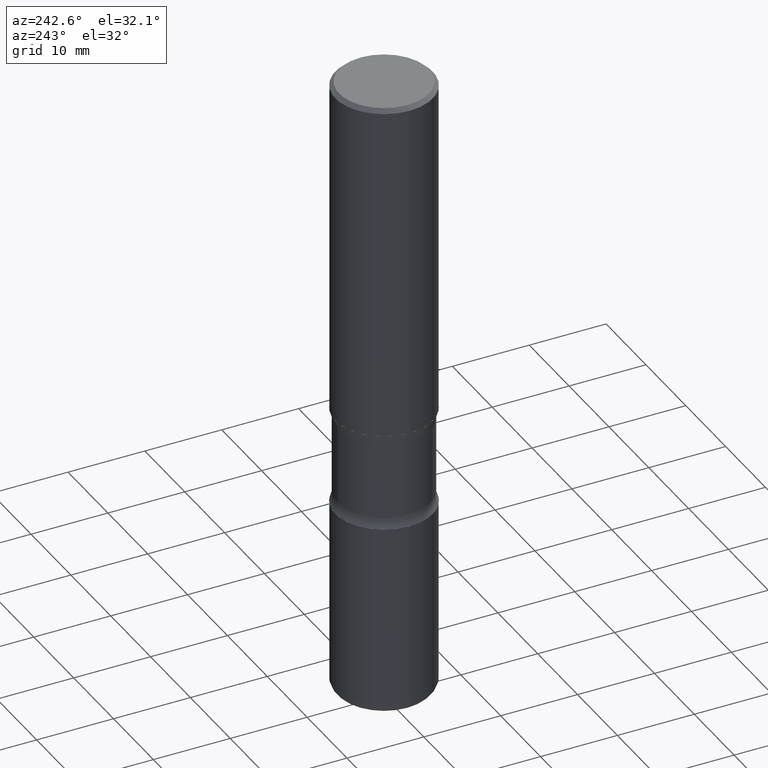
[diagram: clean part render]
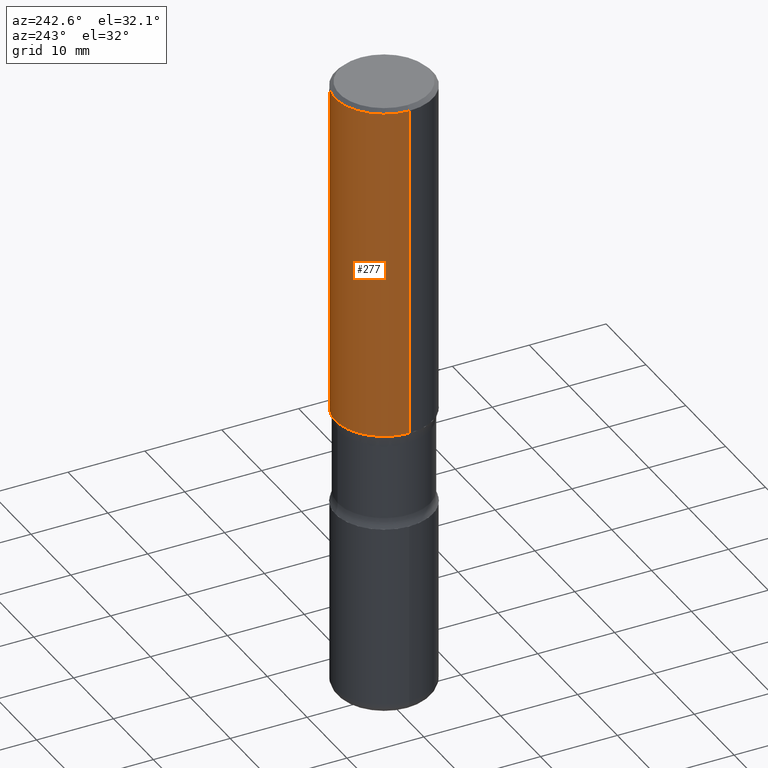
[diagram: same view with one face highlighted and labeled with its STEP entity id]
A machine part, auxiliary view. The second image highlights one B-rep face of the part: STEP entity #277.
In plain terms, the highlighted cylindrical surface (partial cylindrical patch) has radius 6.35 mm, axis along (-0, 0, 1).
Its self-contained STEP definition (entity closure, byte-faithful):
#4 = AXIS2_PLACEMENT_3D ( 'NONE', #109, #69, #482 ) ;
#24 = CARTESIAN_POINT ( 'NONE',  ( 0.2500000000000005551, -1.745740669421570622E-15, 1.219044193948986471E-29 ) ) ;
#39 = DIRECTION ( 'NONE',  ( 1.000000000000000000, -6.982962677686267499E-15, 0.000000000000000000 ) ) ;
#69 = DIRECTION ( 'NONE',  ( -2.445468806185136597E-29, 3.491481338843145583E-15, 1.000000000000000000 ) ) ;
#70 = ORIENTED_EDGE ( 'NONE', *, *, #138, .T. ) ;
#89 = DIRECTION ( 'NONE',  ( -2.445468806185136597E-29, 3.491481338843145583E-15, 1.000000000000000000 ) ) ;
#92 = CIRCLE ( 'NONE', #251, 0.2500000000000003886 ) ;
#93 = VERTEX_POINT ( 'NONE', #372 ) ;
#102 = VERTEX_POINT ( 'NONE', #414 ) ;
#109 = CARTESIAN_POINT ( 'NONE',  ( 4.279570410823991847E-29, -6.110092342975509404E-15, -1.750000000000001332 ) ) ;
#114 = EDGE_CURVE ( 'NONE', #192, #232, #178, .T. ) ;
#126 = FACE_OUTER_BOUND ( 'NONE', #396, .T. ) ;
#138 = EDGE_CURVE ( 'NONE', #232, #93, #195, .T. ) ;
#145 = DIRECTION ( 'NONE',  ( -2.445468806185136877E-29, 3.491481338843145188E-15, 1.000000000000000000 ) ) ;
#149 = CARTESIAN_POINT ( 'NONE',  ( -0.2500000000000005551, 1.776356839400254409E-15, -1.229733772563729108E-29 ) ) ;
#159 = DIRECTION ( 'NONE',  ( -2.445468806185136877E-29, 3.491481338843145188E-15, 1.000000000000000000 ) ) ;
#164 = DIRECTION ( 'NONE',  ( 1.000000000000000000, -6.982962677686266711E-15, 4.876176775795935232E-29 ) ) ;
#178 = CIRCLE ( 'NONE', #4, 0.2500000000000006661 ) ;
#192 = VERTEX_POINT ( 'NONE', #493 ) ;
#195 = LINE ( 'NONE', #149, #341 ) ;
#208 = EDGE_CURVE ( 'NONE', #192, #102, #227, .T. ) ;
#227 = LINE ( 'NONE', #24, #271 ) ;
#232 = VERTEX_POINT ( 'NONE', #495 ) ;
#251 = AXIS2_PLACEMENT_3D ( 'NONE', #511, #547, #39 ) ;
#256 = CARTESIAN_POINT ( 'NONE',  ( 0.000000000000000000, 0.000000000000000000, 0.000000000000000000 ) ) ;
#261 = AXIS2_PLACEMENT_3D ( 'NONE', #256, #89, #164 ) ;
#271 = VECTOR ( 'NONE', #159, 39.37007874015748143 ) ;
#277 = ADVANCED_FACE ( 'NONE', ( #126 ), #290, .T. ) ;
#290 = CYLINDRICAL_SURFACE ( 'NONE', #261, 0.2500000000000005551 ) ;
#341 = VECTOR ( 'NONE', #145, 39.37007874015748143 ) ;
#354 = ORIENTED_EDGE ( 'NONE', *, *, #437, .F. ) ;
#358 = ORIENTED_EDGE ( 'NONE', *, *, #114, .T. ) ;
#372 = CARTESIAN_POINT ( 'NONE',  ( -0.2500000000000003886, 1.675911042644706732E-15, -0.02000000000000000042 ) ) ;
#396 = EDGE_LOOP ( 'NONE', ( #358, #70, #354, #480 ) ) ;
#414 = CARTESIAN_POINT ( 'NONE',  ( 0.2500000000000003886, -1.784954126219748555E-15, -0.02000000000000000042 ) ) ;
#437 = EDGE_CURVE ( 'NONE', #102, #93, #92, .T. ) ;
#480 = ORIENTED_EDGE ( 'NONE', *, *, #208, .F. ) ;
#482 = DIRECTION ( 'NONE',  ( 1.000000000000000000, -6.982962677686267499E-15, 0.000000000000000000 ) ) ;
#493 = CARTESIAN_POINT ( 'NONE',  ( 0.2500000000000006661, -7.855833012397080026E-15, -1.750000000000001332 ) ) ;
#495 = CARTESIAN_POINT ( 'NONE',  ( -0.2500000000000006661, -1.313604145475929576E-15, -1.750000000000001332 ) ) ;
#511 = CARTESIAN_POINT ( 'NONE',  ( 4.890937612370273159E-31, -6.982962677686291609E-17, -0.02000000000000000042 ) ) ;
#547 = DIRECTION ( 'NONE',  ( -2.445468806185136597E-29, 3.491481338843145583E-15, 1.000000000000000000 ) ) ;